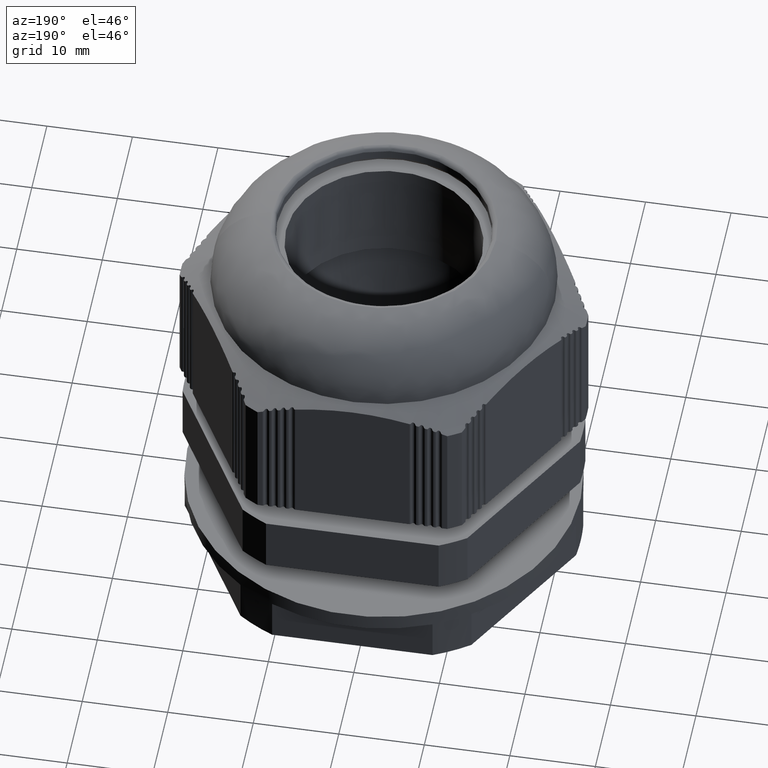
[diagram: clean part render]
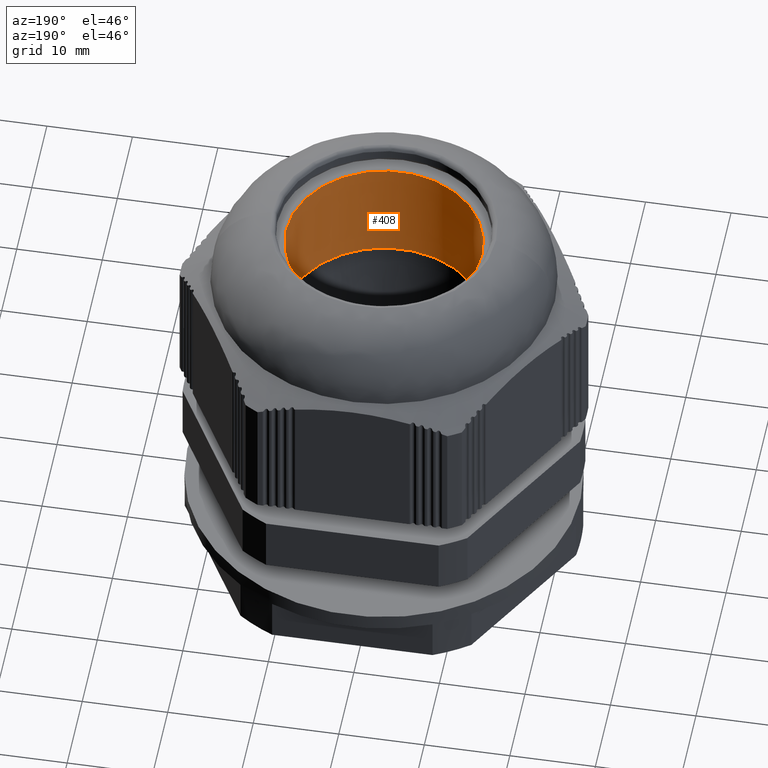
[diagram: same view with one face highlighted and labeled with its STEP entity id]
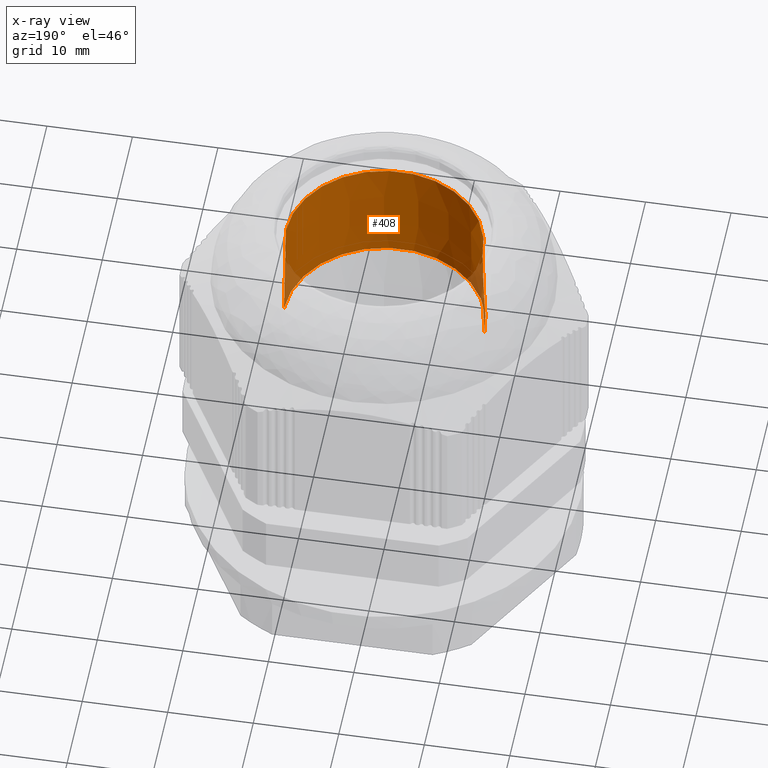
[diagram: x-ray of the same camera — body ghosted, the highlighted face saturated]
A machine part, auxiliary view. The second image highlights one B-rep face of the part: STEP entity #408.
The next image is the same camera in x-ray: the body ghosted, the highlighted face saturated — about 5% of this face is hidden behind the body in this view.
In plain terms, the highlighted conical surface has half-angle 1 deg.
Its self-contained STEP definition (entity closure, byte-faithful):
#170 = VERTEX_POINT ( 'NONE', #4356 ) ;
#295 = VERTEX_POINT ( 'NONE', #4233 ) ;
#298 = VERTEX_POINT ( 'NONE', #4474 ) ;
#317 = VERTEX_POINT ( 'NONE', #4260 ) ;
#408 = ADVANCED_FACE ( 'NONE', ( #3301 ), #2494, .F. ) ;
#469 = EDGE_CURVE ( 'NONE', #295, #170, #2483, .T. ) ;
#524 = EDGE_CURVE ( 'NONE', #170, #298, #3508, .T. ) ;
#537 = EDGE_CURVE ( 'NONE', #317, #298, #2565, .T. ) ;
#587 = EDGE_CURVE ( 'NONE', #295, #317, #3815, .T. ) ;
#1027 = EDGE_LOOP ( 'NONE', ( #5240, #5259, #5274, #5255 ) ) ;
#2473 = AXIS2_PLACEMENT_3D ( 'NONE', #3338, #3293, #3318 ) ;
#2483 = CIRCLE ( 'NONE', #2523, 11.47308415593316200 ) ;
#2494 = CONICAL_SURFACE ( 'NONE', #2473, 11.69999999999999200, 0.01745329251994338600 ) ;
#2510 = VECTOR ( 'NONE', #3534, 1000.000000000000100 ) ;
#2523 = AXIS2_PLACEMENT_3D ( 'NONE', #3428, #3431, #3433 ) ;
#2541 = AXIS2_PLACEMENT_3D ( 'NONE', #3568, #3546, #3562 ) ;
#2565 = CIRCLE ( 'NONE', #2541, 11.69999999999999200 ) ;
#2584 = VECTOR ( 'NONE', #3823, 1000.000000000000100 ) ;
#3293 = DIRECTION ( 'NONE',  ( 0.0000000000000000000, 0.0000000000000000000, -1.000000000000000000 ) ) ;
#3301 = FACE_OUTER_BOUND ( 'NONE', #1027, .T. ) ;
#3318 = DIRECTION ( 'NONE',  ( -1.000000000000000000, 0.0000000000000000000, 0.0000000000000000000 ) ) ;
#3338 = CARTESIAN_POINT ( 'NONE',  ( 0.0000000000000000000, 0.0000000000000000000, 36.60000000000000900 ) ) ;
#3428 = CARTESIAN_POINT ( 'NONE',  ( 0.0000000000000000000, 0.0000000000000000000, 49.59999999999998000 ) ) ;
#3431 = DIRECTION ( 'NONE',  ( 0.0000000000000000000, 0.0000000000000000000, -1.000000000000000000 ) ) ;
#3433 = DIRECTION ( 'NONE',  ( -1.000000000000000000, 0.0000000000000000000, 0.0000000000000000000 ) ) ;
#3508 = LINE ( 'NONE', #3522, #2510 ) ;
#3522 = CARTESIAN_POINT ( 'NONE',  ( -11.69999999999999200, 0.0000000000000000000, 36.60000000000000900 ) ) ;
#3534 = DIRECTION ( 'NONE',  ( -0.01745240643728360200, 0.0000000000000000000, -0.9998476951563911600 ) ) ;
#3546 = DIRECTION ( 'NONE',  ( 0.0000000000000000000, 0.0000000000000000000, -1.000000000000000000 ) ) ;
#3562 = DIRECTION ( 'NONE',  ( -1.000000000000000000, 0.0000000000000000000, 0.0000000000000000000 ) ) ;
#3568 = CARTESIAN_POINT ( 'NONE',  ( 0.0000000000000000000, 0.0000000000000000000, 36.59999999999996600 ) ) ;
#3800 = CARTESIAN_POINT ( 'NONE',  ( 11.69999999999999200, 1.432836755002402300E-015, 36.60000000000000900 ) ) ;
#3815 = LINE ( 'NONE', #3800, #2584 ) ;
#3823 = DIRECTION ( 'NONE',  ( 0.01745240643728360200, 2.137303368083802100E-018, -0.9998476951563911600 ) ) ;
#4233 = CARTESIAN_POINT ( 'NONE',  ( 11.47308415593316200, 1.418942166896789400E-015, 49.59999999999998000 ) ) ;
#4260 = CARTESIAN_POINT ( 'NONE',  ( 11.69999999999999200, 1.432836755002402300E-015, 36.59999999999996600 ) ) ;
#4356 = CARTESIAN_POINT ( 'NONE',  ( -11.47308415593316200, 0.0000000000000000000, 49.59999999999998000 ) ) ;
#4474 = CARTESIAN_POINT ( 'NONE',  ( -11.69999999999999200, 0.0000000000000000000, 36.59999999999996600 ) ) ;
#5240 = ORIENTED_EDGE ( 'NONE', *, *, #469, .F. ) ;
#5255 = ORIENTED_EDGE ( 'NONE', *, *, #524, .F. ) ;
#5259 = ORIENTED_EDGE ( 'NONE', *, *, #587, .T. ) ;
#5274 = ORIENTED_EDGE ( 'NONE', *, *, #537, .T. ) ;